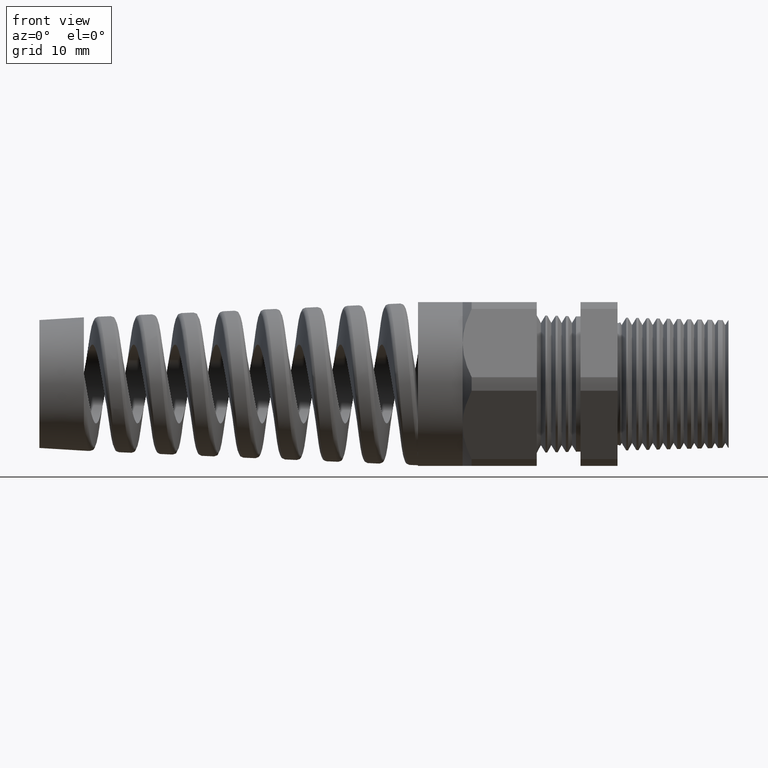
[diagram: clean part render]
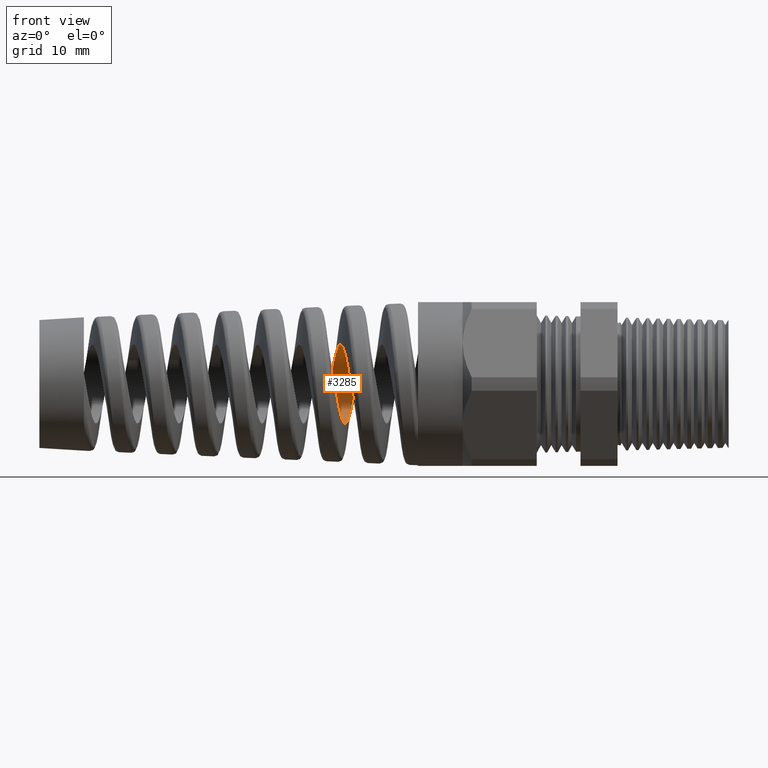
[diagram: same view with one face highlighted and labeled with its STEP entity id]
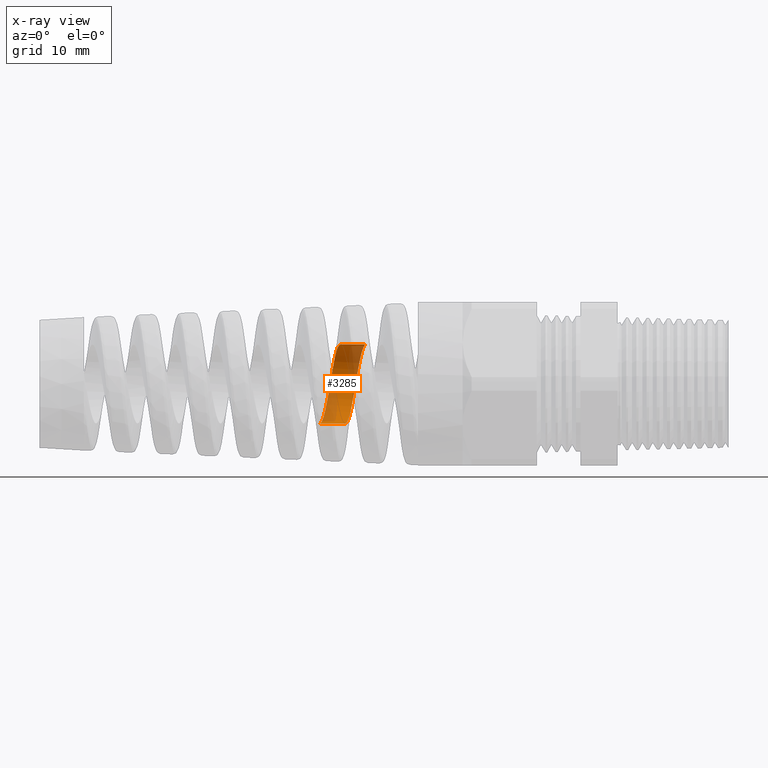
[diagram: x-ray of the same camera — body ghosted, the highlighted face saturated]
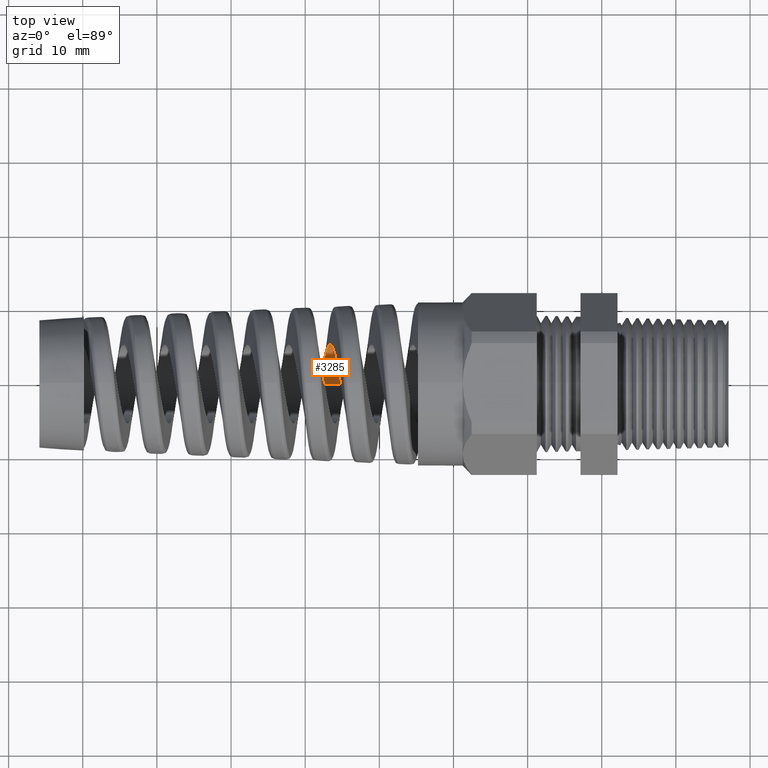
[diagram: same view with one face highlighted and labeled with its STEP entity id]
A machine part, front view. The second image highlights one B-rep face of the part: STEP entity #3285.
The next image is the same camera in x-ray: the body ghosted, the highlighted face saturated — about 40% of this face is hidden behind the body in this view.
A second angle (top view) of the same face is appended — the face is thin or edge-on in the first view.
In plain terms, the highlighted cylindrical surface (partial cylindrical patch) has radius 5.323 mm, axis along (1, 0, 0).
Its self-contained STEP definition (entity closure, byte-faithful):
#145 = VERTEX_POINT ( 'NONE', #10920 ) ;
#2506 = CARTESIAN_POINT ( 'NONE',  ( -1.716736988460723500, 0.1883683682871215800, -0.09288211031904909700 ) ) ;
#2507 = CARTESIAN_POINT ( 'NONE',  ( -1.719033334957258900, 0.1818606483124984600, -0.1050343287266980000 ) ) ;
#2508 = CARTESIAN_POINT ( 'NONE',  ( -1.722461951135749500, 0.1704876651940938300, -0.1220642220128166000 ) ) ;
#2509 = CARTESIAN_POINT ( 'NONE',  ( -1.723605382106830700, 0.1664189027377954400, -0.1275576624914002700 ) ) ;
#2510 = CARTESIAN_POINT ( 'NONE',  ( -1.725904271645808800, 0.1577181453561645200, -0.1381708908349857400 ) ) ;
#2511 = CARTESIAN_POINT ( 'NONE',  ( -1.727065922519408900, 0.1530581960897295400, -0.1433171186990359100 ) ) ;
#2512 = CARTESIAN_POINT ( 'NONE',  ( -1.730528378862970200, 0.1384400431651627800, -0.1579348554251734600 ) ) ;
#2513 = CARTESIAN_POINT ( 'NONE',  ( -1.732804833207297400, 0.1278720607108396700, -0.1665977632095117000 ) ) ;
#2514 = CARTESIAN_POINT ( 'NONE',  ( -1.737383098091929800, 0.1051410334991799600, -0.1818005547064515400 ) ) ;
#2515 = CARTESIAN_POINT ( 'NONE',  ( -1.739709601462630300, 0.09283740325458830800, -0.1883829754411213400 ) ) ;
#2516 = CARTESIAN_POINT ( 'NONE',  ( -1.744300525730996900, 0.06751402036349440900, -0.1988687656055190000 ) ) ;
#2517 = CARTESIAN_POINT ( 'NONE',  ( -1.746575497261666900, 0.05444906251263453800, -0.2028371039648028400 ) ) ;
#2518 = CARTESIAN_POINT ( 'NONE',  ( -1.750022955404393100, 0.03425413527390074700, -0.2068644335790243400 ) ) ;
#2519 = CARTESIAN_POINT ( 'NONE',  ( -1.751184398491647300, 0.02738387321828730400, -0.2078862482763322300 ) ) ;
#2520 = CARTESIAN_POINT ( 'NONE',  ( -1.753491568717884000, 0.01367388344779057800, -0.2092357370199945400 ) ) ;
#2521 = CARTESIAN_POINT ( 'NONE',  ( -1.754638006638561000, 0.006830754863074405000, -0.2095688967857590700 ) ) ;
#2522 = CARTESIAN_POINT ( 'NONE',  ( -1.755782224503439100, -1.059658225667427200E-014, -0.2095688967857587700 ) ) ;
#2523 = B_SPLINE_CURVE_WITH_KNOTS ( 'NONE', 3,
 ( #2522, #2521, #2520, #2519, #2518, #2517, #2516, #2515, #2514, #2513, #2512, #2511, #2510, #2509, #2508, #2507, #2506, #2579, #2578, #2577, #2576, #2575, #2574, #2573, #2572, #2571, #2570, #2569, #2568, #2567, #2566, #2565, #2564, #2563, #2562, #2561, #2560, #2559 ),
 .UNSPECIFIED., .F., .F.,
 ( 4, 2, 2, 2, 2, 2, 2, 2, 2, 2, 2, 2, 2, 2, 2, 2, 2, 2, 4 ),
 ( 0.2124503794155101800, 0.2129777579731762800, 0.2135051365308423800, 0.2145598936461746200, 0.2156146507615068200, 0.2166694078768390300, 0.2171967864345051300, 0.2177241649921712300, 0.2187789221075034400, 0.2198336792228356400, 0.2208884363381678500, 0.2219431934535000800, 0.2229979505688322900, 0.2240527076841644900, 0.2251074647994967000, 0.2261622219148289000, 0.2272169790301611400, 0.2282717361454933400, 0.2293264932608255500 ),
 .UNSPECIFIED. ) ;
#2559 = CARTESIAN_POINT ( 'NONE',  ( -1.645530262480458600, -4.172204177042520600E-013, 0.2095688967857587700 ) ) ;
#2560 = CARTESIAN_POINT ( 'NONE',  ( -1.647827202617460500, 0.01371995186813595800, 0.2095688967857861900 ) ) ;
#2561 = CARTESIAN_POINT ( 'NONE',  ( -1.650101894014687000, 0.02730842958841159900, 0.2082339571602137800 ) ) ;
#2562 = CARTESIAN_POINT ( 'NONE',  ( -1.654695646200557100, 0.05420804593740689800, 0.2029005150235823900 ) ) ;
#2563 = CARTESIAN_POINT ( 'NONE',  ( -1.657020765778545400, 0.06755493690899445900, 0.1988524366372547700 ) ) ;
#2564 = CARTESIAN_POINT ( 'NONE',  ( -1.661597748390768000, 0.09281255216897728300, 0.1883926517070995100 ) ) ;
#2565 = CARTESIAN_POINT ( 'NONE',  ( -1.663874474454406300, 0.1048744893160688700, 0.1819635319612452900 ) ) ;
#2566 = CARTESIAN_POINT ( 'NONE',  ( -1.668495391114379800, 0.1278196919222987800, 0.1666478677631550400 ) ) ;
#2567 = CARTESIAN_POINT ( 'NONE',  ( -1.670798026682187400, 0.1384903099025261400, 0.1578794877336503500 ) ) ;
#2568 = CARTESIAN_POINT ( 'NONE',  ( -1.675369619909822700, 0.1578024668742713200, 0.1385780647589366900 ) ) ;
#2569 = CARTESIAN_POINT ( 'NONE',  ( -1.677670087057628000, 0.1665768218702133900, 0.1279122867455225500 ) ) ;
#2570 = CARTESIAN_POINT ( 'NONE',  ( -1.682290523494905000, 0.1819054238112207700, 0.1049752707684517400 ) ) ;
#2571 = CARTESIAN_POINT ( 'NONE',  ( -1.684569553552743200, 0.1883410568359894800, 0.09291719281961891000 ) ) ;
#2572 = CARTESIAN_POINT ( 'NONE',  ( -1.689147123227995300, 0.1988148089669388700, 0.06766557579017007400 ) ) ;
#2573 = CARTESIAN_POINT ( 'NONE',  ( -1.691470528289588800, 0.2028703848994550000, 0.05432075301512855800 ) ) ;
#2574 = CARTESIAN_POINT ( 'NONE',  ( -1.696062779094624800, 0.2082188267419425900, 0.02742366619532330900 ) ) ;
#2575 = CARTESIAN_POINT ( 'NONE',  ( -1.698339673693156200, 0.2095612349495735400, 0.01383629672076481200 ) ) ;
#2576 = CARTESIAN_POINT ( 'NONE',  ( -1.702934691205071100, 0.2095764938154712500, -0.01360321802181903500 ) ) ;
#2577 = CARTESIAN_POINT ( 'NONE',  ( -1.705256704005324800, 0.2082090057921020000, -0.02747480528906475600 ) ) ;
#2578 = CARTESIAN_POINT ( 'NONE',  ( -1.709832824890506400, 0.2028781637042623200, -0.05427988311146296500 ) ) ;
#2579 = CARTESIAN_POINT ( 'NONE',  ( -1.712112688973010700, 0.1989253469379512800, -0.06736790730079443600 ) ) ;
#3285 = ADVANCED_FACE ( 'NONE', ( #11357 ), #11392, .F. ) ;
#3307 = VERTEX_POINT ( 'NONE', #11604 ) ;
#3308 = VERTEX_POINT ( 'NONE', #11603 ) ;
#3311 = EDGE_CURVE ( 'NONE', #3307, #3308, #11601, .T. ) ;
#3314 = ORIENTED_EDGE ( 'NONE', *, *, #3316, .T. ) ;
#3315 = ORIENTED_EDGE ( 'NONE', *, *, #3311, .F. ) ;
#3316 = EDGE_CURVE ( 'NONE', #3307, #145, #11593, .T. ) ;
#3328 = EDGE_LOOP ( 'NONE', ( #3315, #3314, #10257, #7424 ) ) ;
#7424 = ORIENTED_EDGE ( 'NONE', *, *, #10290, .T. ) ;
#8380 = CARTESIAN_POINT ( 'NONE',  ( -1.755782224503439100, -1.059658225667427200E-014, -0.2095688967857587700 ) ) ;
#8400 = DIRECTION ( 'NONE',  ( 1.000000000000000000, 0.0000000000000000000, 0.0000000000000000000 ) ) ;
#8401 = VECTOR ( 'NONE', #8400, 39.37007874015748100 ) ;
#8402 = CARTESIAN_POINT ( 'NONE',  ( 0.0000000000000000000, 0.0000000000000000000, -0.2095688967857587700 ) ) ;
#8403 = LINE ( 'NONE', #8402, #8401 ) ;
#10257 = ORIENTED_EDGE ( 'NONE', *, *, #13166, .T. ) ;
#10290 = EDGE_CURVE ( 'NONE', #13113, #3308, #2523, .T. ) ;
#10920 = CARTESIAN_POINT ( 'NONE',  ( -1.891273461046697000, 5.996406346093059000E-013, -0.2095688967857588800 ) ) ;
#11357 = FACE_OUTER_BOUND ( 'NONE', #3328, .T. ) ;
#11388 = DIRECTION ( 'NONE',  ( 0.0000000000000000000, 0.0000000000000000000, -1.000000000000000000 ) ) ;
#11389 = DIRECTION ( 'NONE',  ( 1.000000000000000000, 0.0000000000000000000, 0.0000000000000000000 ) ) ;
#11390 = CARTESIAN_POINT ( 'NONE',  ( 0.0000000000000000000, 0.0000000000000000000, 0.0000000000000000000 ) ) ;
#11391 = AXIS2_PLACEMENT_3D ( 'NONE', #11390, #11389, #11388 ) ;
#11392 = CYLINDRICAL_SURFACE ( 'NONE', #11391, 0.2095688967857587700 ) ;
#11572 = CARTESIAN_POINT ( 'NONE',  ( -1.834097483491319300, 0.2095612267619474900, 0.01380755983139764400 ) ) ;
#11573 = CARTESIAN_POINT ( 'NONE',  ( -1.831832770614380700, 0.2082244382708979300, 0.02739807958042167100 ) ) ;
#11574 = CARTESIAN_POINT ( 'NONE',  ( -1.828396575296869200, 0.2042023979335874400, 0.04762079816271811600 ) ) ;
#11575 = CARTESIAN_POINT ( 'NONE',  ( -1.827239295049849300, 0.2025116054765079800, 0.05436423831113135200 ) ) ;
#11576 = CARTESIAN_POINT ( 'NONE',  ( -1.824946038507980100, 0.1985116107739263400, 0.06752452256597943300 ) ) ;
#11577 = CARTESIAN_POINT ( 'NONE',  ( -1.823805977238863700, 0.1962004382395605400, 0.07396709788621416700 ) ) ;
#11578 = CARTESIAN_POINT ( 'NONE',  ( -1.820390598791253000, 0.1883541936414656300, 0.09288866657505011300 ) ) ;
#11579 = CARTESIAN_POINT ( 'NONE',  ( -1.818120704622103100, 0.1819149983473594400, 0.1049654528855116500 ) ) ;
#11580 = CARTESIAN_POINT ( 'NONE',  ( -1.813506096835477000, 0.1665250415547332700, 0.1279852470340810100 ) ) ;
#11581 = CARTESIAN_POINT ( 'NONE',  ( -1.811234221320156200, 0.1578211450305783700, 0.1385571019950794800 ) ) ;
#11582 = CARTESIAN_POINT ( 'NONE',  ( -1.807818877110013400, 0.1433354155275490000, 0.1530382194536852000 ) ) ;
#11583 = CARTESIAN_POINT ( 'NONE',  ( -1.806679283192810000, 0.1382659900512993300, 0.1576353703705449500 ) ) ;
#11584 = CARTESIAN_POINT ( 'NONE',  ( -1.804387176691568500, 0.1276365530331063900, 0.1663589622669962600 ) ) ;
#11585 = CARTESIAN_POINT ( 'NONE',  ( -1.803229911806820000, 0.1220511659258453500, 0.1704989715294849800 ) ) ;
#11586 = CARTESIAN_POINT ( 'NONE',  ( -1.799792829787619800, 0.1048960138785616900, 0.1819478066871651200 ) ) ;
#11587 = CARTESIAN_POINT ( 'NONE',  ( -1.797527546137032800, 0.09284728204493414300, 0.1883769391138265200 ) ) ;
#11588 = CARTESIAN_POINT ( 'NONE',  ( -1.792962614443041900, 0.06755494888188717800, 0.1988537599709682700 ) ) ;
#11589 = CARTESIAN_POINT ( 'NONE',  ( -1.790646314334339400, 0.05419429184237393300, 0.2029023701158625100 ) ) ;
#11590 = CARTESIAN_POINT ( 'NONE',  ( -1.786085138581239700, 0.02734786767755785200, 0.2082270088159114100 ) ) ;
#11591 = CARTESIAN_POINT ( 'NONE',  ( -1.783820081362818200, 0.01375591982885948300, 0.2095688967858240200 ) ) ;
#11592 = CARTESIAN_POINT ( 'NONE',  ( -1.781526348335523500, -9.942790205487429300E-013, 0.2095688967857587100 ) ) ;
#11593 = B_SPLINE_CURVE_WITH_KNOTS ( 'NONE', 3,
 ( #11592, #11591, #11590, #11589, #11588, #11587, #11586, #11585, #11584, #11583, #11582, #11581, #11580, #11579, #11578, #11577, #11576, #11575, #11574, #11573, #11572, #11635, #11634, #11633, #11632, #11631, #11630, #11629, #11628, #11627, #11626, #11625, #11624, #11623, #11622, #11621, #11620, #11619, #11618, #11617, #11616, #11615 ),
 .UNSPECIFIED., .F., .F.,
 ( 4, 2, 2, 2, 2, 2, 2, 2, 2, 2, 2, 2, 2, 2, 2, 2, 2, 2, 2, 2, 4 ),
 ( 0.07556842978163162700, 0.07662301440690214000, 0.07767759903217265300, 0.07873218365744316700, 0.07925947597007841600, 0.07978676828271368000, 0.08084135290798419300, 0.08189593753325469200, 0.08242322984588995600, 0.08295052215852520600, 0.08400510678379571900, 0.08505969140906621800, 0.08611427603433671800, 0.08664156834697198100, 0.08716886065960723100, 0.08822344528487773000, 0.08927802991014824300, 0.08980532222278349300, 0.09033261453541874300, 0.09138719916068925600, 0.09244178378595976900 ),
 .UNSPECIFIED. ) ;
#11598 = DIRECTION ( 'NONE',  ( 1.000000000000000000, 0.0000000000000000000, 0.0000000000000000000 ) ) ;
#11599 = VECTOR ( 'NONE', #11598, 39.37007874015748100 ) ;
#11600 = CARTESIAN_POINT ( 'NONE',  ( 0.0000000000000000000, 2.566478786495215200E-017, 0.2095688967857587700 ) ) ;
#11601 = LINE ( 'NONE', #11600, #11599 ) ;
#11603 = CARTESIAN_POINT ( 'NONE',  ( -1.645530262480458600, -4.172204177042520600E-013, 0.2095688967857587700 ) ) ;
#11604 = CARTESIAN_POINT ( 'NONE',  ( -1.781526348335523500, -9.942790205487429300E-013, 0.2095688967857587100 ) ) ;
#11615 = CARTESIAN_POINT ( 'NONE',  ( -1.891273461046697000, 5.996406346093059000E-013, -0.2095688967857588800 ) ) ;
#11616 = CARTESIAN_POINT ( 'NONE',  ( -1.888993878671941800, 0.01367702947514469300, -0.2095688967857196100 ) ) ;
#11617 = CARTESIAN_POINT ( 'NONE',  ( -1.886679357723930900, 0.02756741422942811000, -0.2081988884560981300 ) ) ;
#11618 = CARTESIAN_POINT ( 'NONE',  ( -1.882112434805864000, 0.05443270335419220200, -0.2028393953037875800 ) ) ;
#11619 = CARTESIAN_POINT ( 'NONE',  ( -1.879846041058624200, 0.06749918686146561000, -0.1988759976967993100 ) ) ;
#11620 = CARTESIAN_POINT ( 'NONE',  ( -1.876411654168114000, 0.08653527784928090300, -0.1909919847382656700 ) ) ;
#11621 = CARTESIAN_POINT ( 'NONE',  ( -1.875254840501793900, 0.09281746723393324800, -0.1880197159533211500 ) ) ;
#11622 = CARTESIAN_POINT ( 'NONE',  ( -1.872960805646208400, 0.1049543249719525900, -0.1815243385350064600 ) ) ;
#11623 = CARTESIAN_POINT ( 'NONE',  ( -1.871820977463336100, 0.1108250161742766900, -0.1779988109190232500 ) ) ;
#11624 = CARTESIAN_POINT ( 'NONE',  ( -1.868405974433897000, 0.1278552371813868000, -0.1666094667771039500 ) ) ;
#11625 = CARTESIAN_POINT ( 'NONE',  ( -1.866135156976296500, 0.1384383996265993700, -0.1579405745584456200 ) ) ;
#11626 = CARTESIAN_POINT ( 'NONE',  ( -1.861524015659046200, 0.1579944055234564200, -0.1383769612555339500 ) ) ;
#11627 = CARTESIAN_POINT ( 'NONE',  ( -1.859247799064011100, 0.1666876095602992900, -0.1277528173076498100 ) ) ;
#11628 = CARTESIAN_POINT ( 'NONE',  ( -1.855834314445765900, 0.1780627984863047100, -0.1107220260290058000 ) ) ;
#11629 = CARTESIAN_POINT ( 'NONE',  ( -1.854695218618058100, 0.1815809658111239800, -0.1048555068583878300 ) ) ;
#11630 = CARTESIAN_POINT ( 'NONE',  ( -1.852403999263731100, 0.1880587240847966800, -0.09273748303155701600 ) ) ;
#11631 = CARTESIAN_POINT ( 'NONE',  ( -1.851246290987892800, 0.1910296186175083300, -0.08645312172373548200 ) ) ;
#11632 = CARTESIAN_POINT ( 'NONE',  ( -1.847805361816772000, 0.1989180908015738500, -0.06737993344887981100 ) ) ;
#11633 = CARTESIAN_POINT ( 'NONE',  ( -1.845540376741842300, 0.2028723747766544800, -0.05430590772248108200 ) ) ;
#11634 = CARTESIAN_POINT ( 'NONE',  ( -1.840979719677895600, 0.2082112013591458400, -0.02746684710088173600 ) ) ;
#11635 = CARTESIAN_POINT ( 'NONE',  ( -1.838662594602100500, 0.2095765015909987500, -0.01357374124359657000 ) ) ;
#13113 = VERTEX_POINT ( 'NONE', #8380 ) ;
#13166 = EDGE_CURVE ( 'NONE', #145, #13113, #8403, .T. ) ;